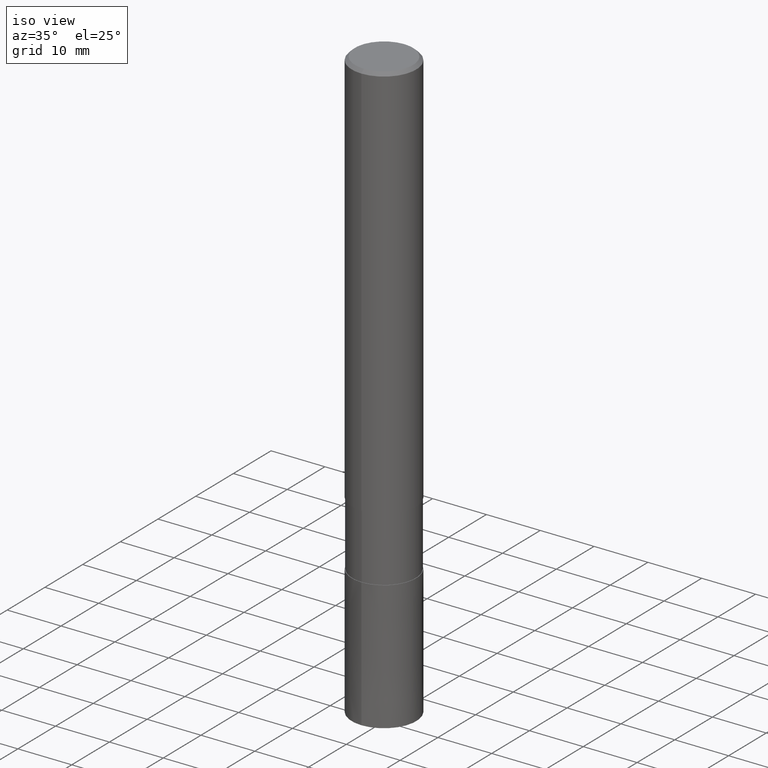
[diagram: clean part render]
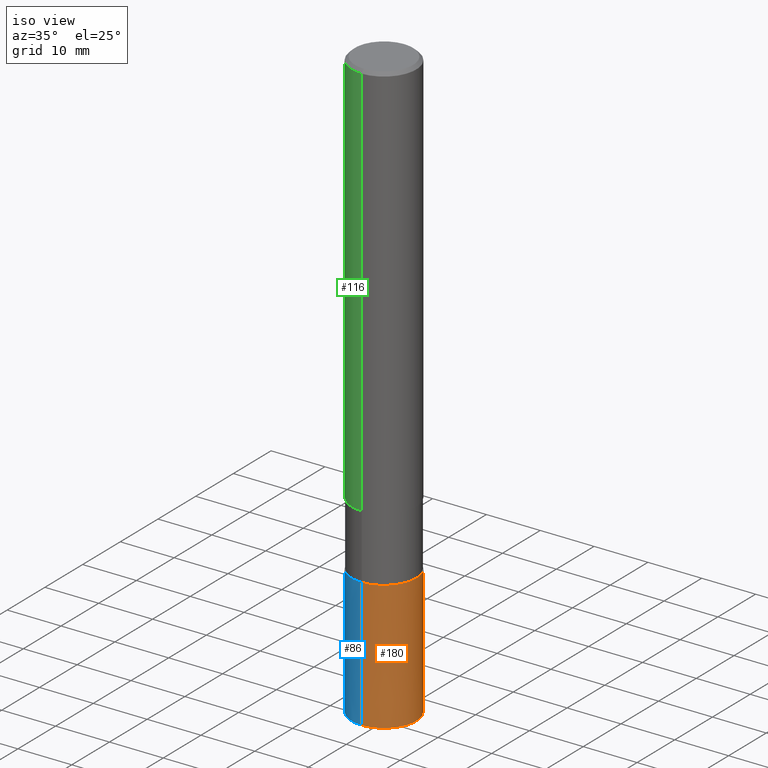
[diagram: same view with three faces highlighted in distinct colors, each labeled with its STEP entity id]
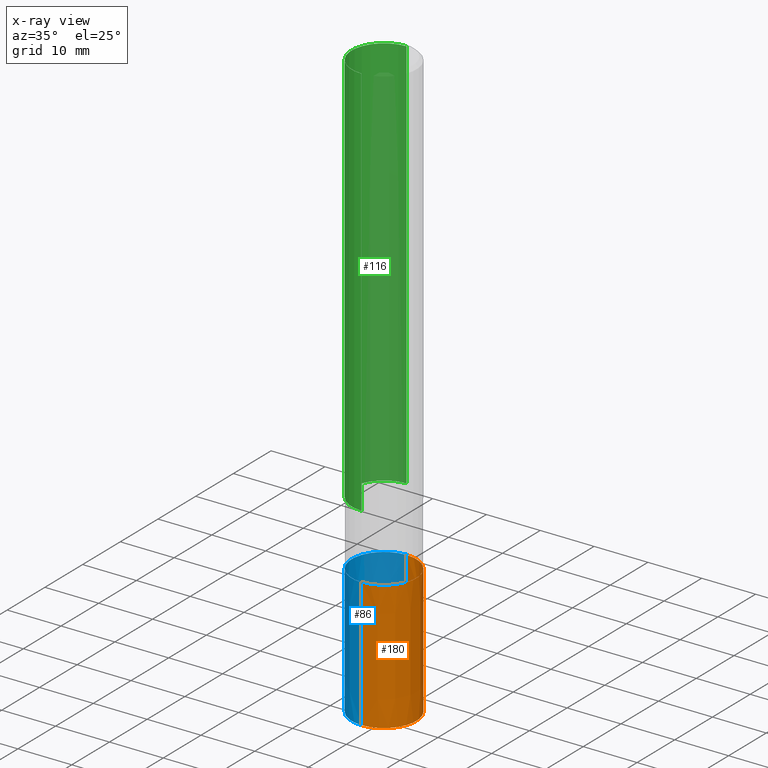
[diagram: x-ray of the same camera — body ghosted, the three highlighted faces saturated]
A machine part, iso view with three faces highlighted in distinct colors.
The next image is the same camera in x-ray (body ghosted, the three faces saturated) — at least one of them is partly hidden behind the body in this view.
Their STEP definitions:

[orange] entity #180 — the highlighted conical surface has half-angle 0 deg.
#112=VERTEX_POINT('',#238);
#118=VERTEX_POINT('',#245);
#120=VERTEX_POINT('',#247);
#122=VERTEX_POINT('',#249);
#154=EDGE_CURVE('',#122,#120,#288,.T.);
#158=EDGE_CURVE('',#118,#112,#292,.T.);
#160=EDGE_CURVE('',#112,#122,#294,.T.);
#176=EDGE_CURVE('',#118,#120,#310,.T.);
#180=ADVANCED_FACE('',(#314),#315,.T.);
#238=CARTESIAN_POINT('',(0.0,6.0,-110.0));
#245=CARTESIAN_POINT('',(0.0,5.9999,-86.0));
#247=CARTESIAN_POINT('',(7.34751566229888E-016,-5.9999,-86.0));
#249=CARTESIAN_POINT('',(7.34763812293426E-016,-6.0,-110.0));
#288=LINE('',#432,#433);
#292=LINE('',#438,#439);
#294=CIRCLE('',#442,6.0);
#310=CIRCLE('',#462,5.9999);
#314=FACE_OUTER_BOUND('',#468,.T.);
#315=CONICAL_SURFACE('',#469,5.99995,4.16666666663284E-006);
#432=CARTESIAN_POINT('',(7.34757689261657E-016,-5.99995,-98.0));
#433=VECTOR('',#591,1.0);
#438=CARTESIAN_POINT('',(-7.34757689261657E-016,5.99995,-98.0));
#439=VECTOR('',#592,1.0);
#442=AXIS2_PLACEMENT_3D('',#593,#594,#595);
#462=AXIS2_PLACEMENT_3D('',#609,#610,#611);
#468=EDGE_LOOP('',(#614,#615,#616,#617));
#469=AXIS2_PLACEMENT_3D('',#618,#619,#620);
#591=DIRECTION('',(-5.10252647420372E-022,4.16666666662079E-006,0.99999999999132));
#592=DIRECTION('',(-5.10252647420372E-022,4.16666666662079E-006,-0.99999999999132));
#593=CARTESIAN_POINT('',(0.0,0.0,-110.0));
#594=DIRECTION('',(0.0,0.0,-1.0));
#595=DIRECTION('',(0.0,1.0,0.0));
#609=CARTESIAN_POINT('',(0.0,0.0,-86.0));
#610=DIRECTION('',(0.0,0.0,-1.0));
#611=DIRECTION('',(0.0,1.0,0.0));
#614=ORIENTED_EDGE('',*,*,#158,.F.);
#615=ORIENTED_EDGE('',*,*,#176,.T.);
#616=ORIENTED_EDGE('',*,*,#154,.F.);
#617=ORIENTED_EDGE('',*,*,#160,.F.);
#618=CARTESIAN_POINT('',(0.0,0.0,-98.0));
#619=DIRECTION('',(0.0,-0.0,-1.0));
#620=DIRECTION('',(0.0,1.0,0.0));

[blue] entity #86 — the highlighted conical surface has half-angle 0 deg.
#86=ADVANCED_FACE('',(#208),#209,.T.);
#112=VERTEX_POINT('',#238);
#118=VERTEX_POINT('',#245);
#120=VERTEX_POINT('',#247);
#122=VERTEX_POINT('',#249);
#124=EDGE_CURVE('',#120,#118,#251,.T.);
#126=EDGE_CURVE('',#122,#112,#253,.T.);
#154=EDGE_CURVE('',#122,#120,#288,.T.);
#158=EDGE_CURVE('',#118,#112,#292,.T.);
#208=FACE_OUTER_BOUND('',#335,.T.);
#209=CONICAL_SURFACE('',#336,5.99995,4.16666666663284E-006);
#238=CARTESIAN_POINT('',(0.0,6.0,-110.0));
#245=CARTESIAN_POINT('',(0.0,5.9999,-86.0));
#247=CARTESIAN_POINT('',(7.34751566229888E-016,-5.9999,-86.0));
#249=CARTESIAN_POINT('',(7.34763812293426E-016,-6.0,-110.0));
#251=CIRCLE('',#388,5.9999);
#253=CIRCLE('',#391,6.0);
#288=LINE('',#432,#433);
#292=LINE('',#438,#439);
#335=EDGE_LOOP('',(#483,#484,#485,#486));
#336=AXIS2_PLACEMENT_3D('',#487,#488,#489);
#388=AXIS2_PLACEMENT_3D('',#532,#533,#534);
#391=AXIS2_PLACEMENT_3D('',#535,#536,#537);
#432=CARTESIAN_POINT('',(7.34757689261657E-016,-5.99995,-98.0));
#433=VECTOR('',#591,1.0);
#438=CARTESIAN_POINT('',(-7.34757689261657E-016,5.99995,-98.0));
#439=VECTOR('',#592,1.0);
#483=ORIENTED_EDGE('',*,*,#158,.T.);
#484=ORIENTED_EDGE('',*,*,#126,.F.);
#485=ORIENTED_EDGE('',*,*,#154,.T.);
#486=ORIENTED_EDGE('',*,*,#124,.T.);
#487=CARTESIAN_POINT('',(0.0,0.0,-98.0));
#488=DIRECTION('',(0.0,-0.0,-1.0));
#489=DIRECTION('',(0.0,1.0,0.0));
#532=CARTESIAN_POINT('',(0.0,0.0,-86.0));
#533=DIRECTION('',(0.0,0.0,-1.0));
#534=DIRECTION('',(0.0,1.0,0.0));
#535=CARTESIAN_POINT('',(0.0,0.0,-110.0));
#536=DIRECTION('',(0.0,0.0,-1.0));
#537=DIRECTION('',(0.0,1.0,0.0));
#591=DIRECTION('',(-5.10252647420372E-022,4.16666666662079E-006,0.99999999999132));
#592=DIRECTION('',(-5.10252647420372E-022,4.16666666662079E-006,-0.99999999999132));

[green] entity #116 — the highlighted cylindrical surface (partial cylindrical patch) has radius 6 mm, axis along (-0, -0, 1).
#92=VERTEX_POINT('',#216);
#106=EDGE_CURVE('',#142,#92,#231,.T.);
#116=ADVANCED_FACE('',(#242),#243,.T.);
#130=EDGE_CURVE('',#92,#134,#258,.T.);
#132=EDGE_CURVE('',#156,#142,#260,.T.);
#134=VERTEX_POINT('',#262);
#142=VERTEX_POINT('',#272);
#156=VERTEX_POINT('',#290);
#170=EDGE_CURVE('',#156,#134,#304,.T.);
#216=CARTESIAN_POINT('',(0.0,6.0,-0.599999999999994));
#231=CIRCLE('',#365,6.0);
#242=FACE_OUTER_BOUND('',#378,.T.);
#243=CYLINDRICAL_SURFACE('',#379,6.0);
#258=LINE('',#397,#398);
#260=LINE('',#401,#402);
#262=CARTESIAN_POINT('',(0.0,6.0,-74.0));
#272=CARTESIAN_POINT('',(7.34763812293426E-016,-6.0,-0.599999999999994));
#290=CARTESIAN_POINT('',(7.34763812293426E-016,-6.0,-74.0));
#304=CIRCLE('',#455,6.0);
#365=AXIS2_PLACEMENT_3D('',#509,#510,#511);
#378=EDGE_LOOP('',(#525,#526,#527,#528));
#379=AXIS2_PLACEMENT_3D('',#529,#530,#531);
#397=CARTESIAN_POINT('',(-7.34763812293426E-016,6.0,-37.3));
#398=VECTOR('',#544,1.0);
#401=CARTESIAN_POINT('',(7.34763812293426E-016,-6.0,-37.3));
#402=VECTOR('',#545,1.0);
#455=AXIS2_PLACEMENT_3D('',#606,#607,#608);
#509=CARTESIAN_POINT('',(0.0,0.0,-0.599999999999994));
#510=DIRECTION('',(0.0,0.0,-1.0));
#511=DIRECTION('',(0.0,1.0,0.0));
#525=ORIENTED_EDGE('',*,*,#130,.T.);
#526=ORIENTED_EDGE('',*,*,#170,.F.);
#527=ORIENTED_EDGE('',*,*,#132,.T.);
#528=ORIENTED_EDGE('',*,*,#106,.T.);
#529=CARTESIAN_POINT('',(0.0,0.0,-37.3));
#530=DIRECTION('',(-0.0,-0.0,1.0));
#531=DIRECTION('',(0.0,1.0,0.0));
#544=DIRECTION('',(0.0,0.0,-1.0));
#545=DIRECTION('',(-0.0,-0.0,1.0));
#606=CARTESIAN_POINT('',(0.0,0.0,-74.0));
#607=DIRECTION('',(0.0,0.0,-1.0));
#608=DIRECTION('',(0.0,1.0,0.0));